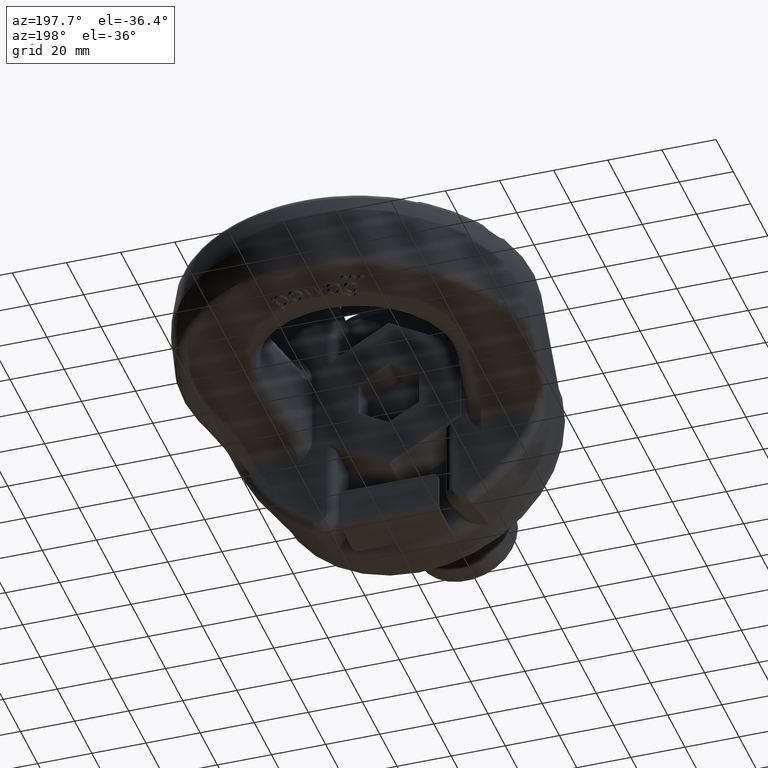
[diagram: clean part render]
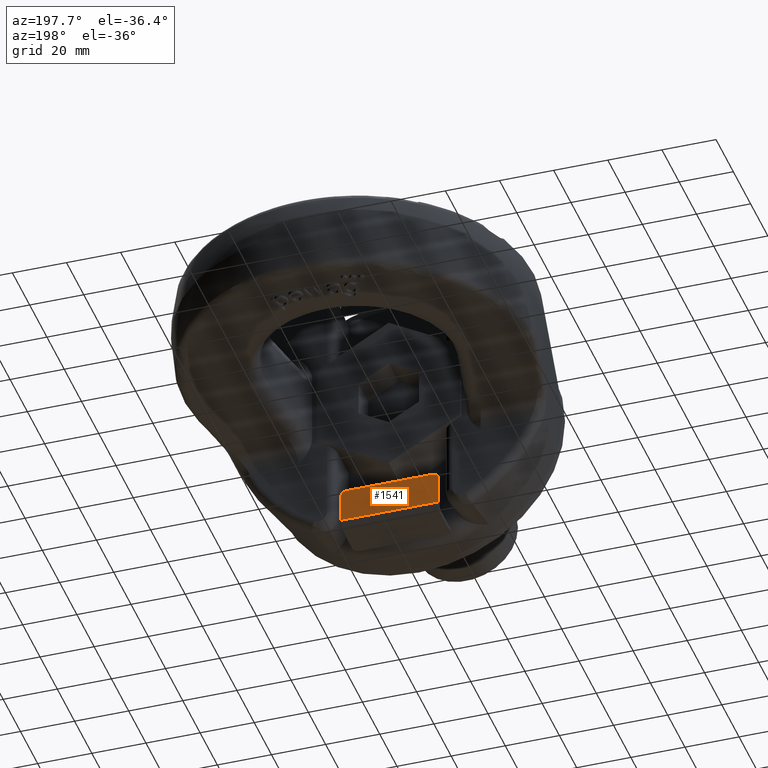
[diagram: same view with one face highlighted and labeled with its STEP entity id]
A machine part, auxiliary view. The second image highlights one B-rep face of the part: STEP entity #1541.
In plain terms, the highlighted planar face has unit normal (0, -1, 0).
Its self-contained STEP definition (entity closure, byte-faithful):
#1302=FACE_OUTER_BOUND('',#2079,.T.);
#1541=ADVANCED_FACE('',(#1302),#1664,.F.);
#1664=PLANE('',#5373);
#1752=CIRCLE('',#5371,2.);
#1753=CIRCLE('',#5372,2.);
#2079=EDGE_LOOP('',(#3846,#3847,#3848,#3849,#3850,#3851));
#2347=LINE('',#9647,#2683);
#2355=LINE('',#9669,#2691);
#2360=LINE('',#9682,#2696);
#2364=LINE('',#9696,#2700);
#2683=VECTOR('',#6181,1.);
#2691=VECTOR('',#6197,1.);
#2696=VECTOR('',#6206,1.);
#2700=VECTOR('',#6228,1.);
#3846=ORIENTED_EDGE('',*,*,#4840,.T.);
#3847=ORIENTED_EDGE('',*,*,#4848,.T.);
#3848=ORIENTED_EDGE('',*,*,#4834,.T.);
#3849=ORIENTED_EDGE('',*,*,#4849,.F.);
#3850=ORIENTED_EDGE('',*,*,#4824,.F.);
#3851=ORIENTED_EDGE('',*,*,#4850,.T.);
#4248=VERTEX_POINT('',#9646);
#4249=VERTEX_POINT('',#9648);
#4258=VERTEX_POINT('',#9668);
#4259=VERTEX_POINT('',#9670);
#4264=VERTEX_POINT('',#9681);
#4265=VERTEX_POINT('',#9683);
#4824=EDGE_CURVE('',#4248,#4249,#2347,.T.);
#4834=EDGE_CURVE('',#4259,#4258,#2355,.T.);
#4840=EDGE_CURVE('',#4265,#4264,#2360,.T.);
#4848=EDGE_CURVE('',#4264,#4259,#1752,.T.);
#4849=EDGE_CURVE('',#4249,#4258,#2364,.T.);
#4850=EDGE_CURVE('',#4248,#4265,#1753,.T.);
#5371=AXIS2_PLACEMENT_3D('',#9695,#6226,#6227);
#5372=AXIS2_PLACEMENT_3D('',#9697,#6229,#6230);
#5373=AXIS2_PLACEMENT_3D('',#9698,#6231,#6232);
#6181=DIRECTION('',(2.34291072916505E-15,0.,-1.));
#6197=DIRECTION('',(2.34291072916505E-15,0.,-1.));
#6206=DIRECTION('',(1.,0.,2.34291072916505E-15));
#6226=DIRECTION('',(0.,1.,0.));
#6227=DIRECTION('',(-1.73472347597681E-15,0.,1.));
#6228=DIRECTION('',(1.,0.,2.34291072916505E-15));
#6229=DIRECTION('',(0.,1.,0.));
#6230=DIRECTION('',(-1.73472347597681E-15,0.,1.));
#6231=DIRECTION('',(0.,-1.,0.));
#6232=DIRECTION('',(-2.34187669256869E-15,0.,1.));
#9646=CARTESIAN_POINT('',(-18.0499999999999,34.,-40.5000000000001));
#9647=CARTESIAN_POINT('',(-18.0499999999999,34.,-38.5000000000001));
#9648=CARTESIAN_POINT('',(-18.0499999999999,34.,-51.));
#9668=CARTESIAN_POINT('',(18.0500000000001,34.,-51.));
#9669=CARTESIAN_POINT('',(18.0500000000001,34.,-38.5));
#9670=CARTESIAN_POINT('',(18.0500000000001,34.,-40.5));
#9681=CARTESIAN_POINT('',(16.0500000000001,34.,-38.5));
#9682=CARTESIAN_POINT('',(-18.0499999999999,34.,-38.5000000000001));
#9683=CARTESIAN_POINT('',(-16.0499999999999,34.,-38.5000000000001));
#9695=CARTESIAN_POINT('',(16.0500000000001,34.,-40.5));
#9696=CARTESIAN_POINT('',(-18.0499999999999,34.,-51.));
#9697=CARTESIAN_POINT('',(-16.0499999999999,34.,-40.5000000000001));
#9698=CARTESIAN_POINT('',(-18.0499999999999,34.,-38.5000000000001));